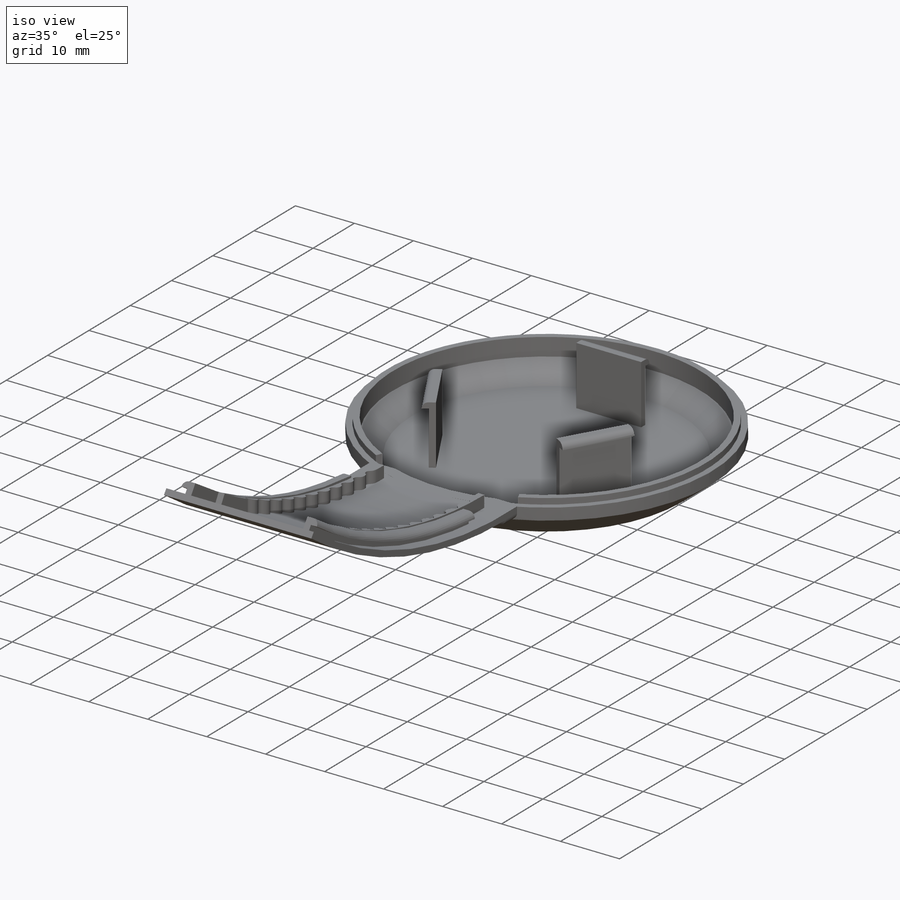
[diagram: iso view]
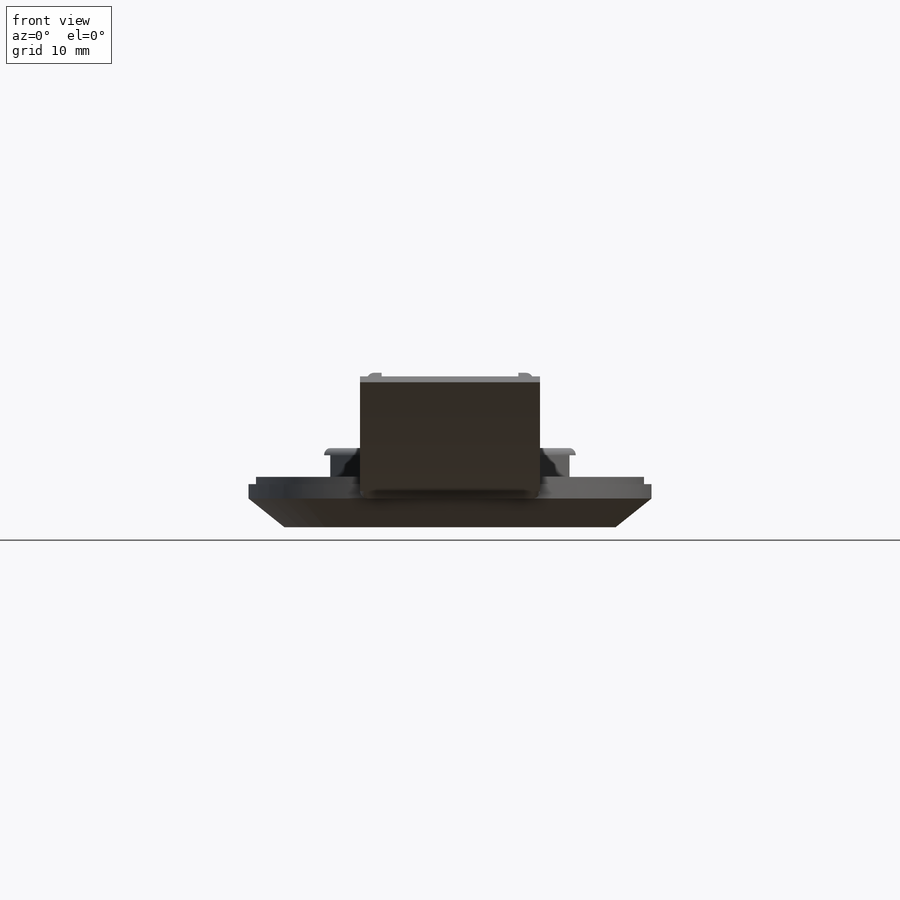
[diagram: front view]
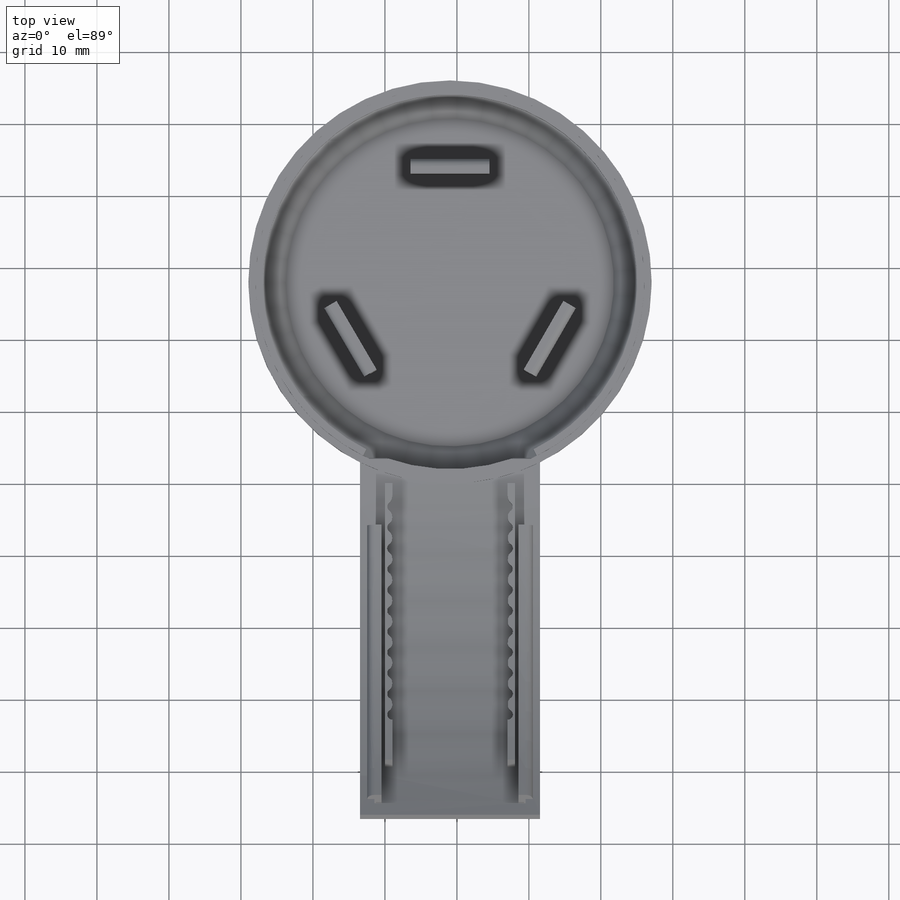
[diagram: top view]
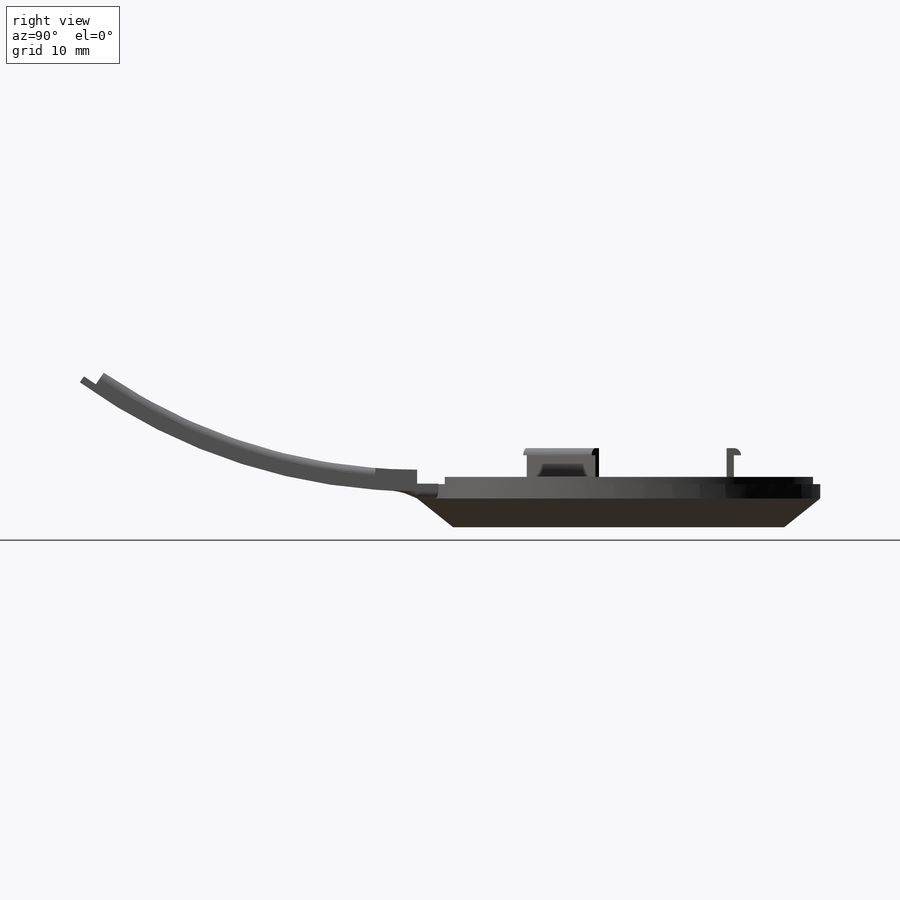
[diagram: right view]
SOLIDWORKS PART (.sldprt)
format: sldprt  version: not decoded by parser v0  size: 1,201,152 bytes
history: native  units: mm
features: sketch x17, cut_extrude x6, plane x4, revolve x4, extrude x3, cut_revolve x2, material x1, fillet x1 (+9 scaffold rows collapsed)
feature tree (47):
  scaffold x9  (default folders/planes/origin — collapsed)
  material  "Material <sin especificar>"
  plane  "Alzado"
  plane  "Planta"
  plane  "Vista lateral"
  sketch  "Croquis1"  dims[c1.D1=25.0mm c1.D2=3.0mm c1.D3=1.0mm c1.D4=2.0mm c1.D5=2.0mm c1.D6=1.0mm c1.D7=1.0mm c1.D8=1.0mm c1.D9=1.0mm c1.D10=1.0mm c1.D11=0.5mm c1.D12=0.5mm c1.D13=1.0mm c1.D14=1.0mm c1.D15=90.0mm c2.D2=8.0mm c2.D3=8.0mm c2.D4=8.0mm c2.D5=79.0mm]
  revolve  "Revolución2"  Angle=30.080284deg
  sketch  "Croquis6"  dims[c1.D1=1.0mm c1.D2=1.0mm c1.D3=32.0mm c1.D4=32.0mm c1.D5=1.45mm c1.D6=1.45mm c1.D7=1.45mm c1.D8=1.45mm c1.D9=1.45mm c1.D10=1.45mm c1.D11=1.45mm c1.D12=1.45mm c1.D13=1.45mm c1.D14=1.45mm c1.D15=1.45mm c1.D16=1.45mm c1.D17=1.45mm c1.D18=1.45mm c1.D19=1.45mm c1.D20=1.45mm c1.D21=1.45mm c1.D22=1.45mm c1.D23=1.45mm c1.D24=1.45mm c1.D25=~1.425162mm c1.D26=1.45mm c1.D27=0.75mm c2.D4=8.0mm]
  cut_extrude  "Cortar-Extruir2"  Depth=24mm
  sketch  "Croquis7"  dims[D1=3.5mm D2=25.0mm D3=~3.496102mm D4=1.0mm D5=2.0mm D6=1.0mm D7=3.0mm D8=1.0mm D9=2.0mm D10=2.0mm D11=2.0mm D12=1.0mm D13=1.0mm D14=2.0mm D15=80.1mm]
  revolve  "Revolución8"  Angle=35.81deg
  sketch  "Croquis8"  dims[D1=80.1mm]
  cut_revolve  "Cortar-Revolución1"  Angle=4.297183deg
  sketch  "Croquis9"  dims[D1=80.1mm]
  cut_revolve  "Cortar-Revolución2"  Angle=1.432394deg
  sketch  "Croquis13"  dims[D1=56.0mm]
  sketch  "Croquis15"  dims[D1=~10.957067mm]
  plane  "Plano2"
  sketch  "Croquis16"  dims[c1.D1=28.0mm c1.D2=6.0mm c1.D3=23.0mm c1.D4=2.0mm c1.D5=1.0mm c1.D6=~6.628613mm c2.D6=~178.457183deg c3.D6=~6.628613mm c4.D6=~178.457183deg c5.D6=1.0mm c5.D7=1.0mm c6.D6=1.5mm c6.D8=1.75mm c6.D9=~1.030776mm]
  revolve  "Revolución9"  Angle=360deg
  sketch  "Croquis17"  dims[D1=80.1mm]
  revolve  "Revolución11"  Angle=2.5deg
  sketch  "Croquis18"  dims[D1=~3.410208mm]
  extrude  "Saliente-Extruir1"  Depth=25mm
  sketch  "Croquis19"
  cut_extrude  "Cortar-Extruir3"  Depth=28mm
  sketch  "Croquis23"  dims[D1=27.0mm]
  cut_extrude  "Cortar-Extruir4"  Depth=2mm
  sketch  "Croquis25"  dims[c1.D1=~7.679765mm c1.D2=30.0mm c2.D1=~9.898923mm c3.D1=120.0deg c3.D3=7.5mm c4.D3=~106.925907deg c5.D3=7.5mm c6.D3=120.0deg c6.D4=5.5mm c6.D5=11.0mm c6.D6=2.0mm c6.D7=2.0mm c6.D8=2.0mm c6.D9=5.5mm c6.D10=11.0mm c6.D11=2.0mm c6.D12=2.0mm c6.D13=5.5mm c6.D14=11.0mm]
  extrude  "Saliente-Extruir2"  Depth=10mm
  sketch  "Croquis26"  dims[c1.D1=~7.876807mm c2.D1=90.0deg c3.D1=9.0mm c3.D2=1.0mm]
  cut_extrude  "Cortar-Extruir8"  Depth=13mm
  sketch  "Croquis27"  dims[D1=9.0mm D2=1.0mm]
  cut_extrude  "Cortar-Extruir9"  Depth=13mm
  sketch  "Croquis28"  dims[D1=9.0mm D2=1.0mm]
  cut_extrude  "Cortar-Extruir10"  Depth=13mm
  fillet  "Redondeo3"  Radius=1mm
  sketch  "Croquis30"  dims[D1=54.0mm D2=52.0mm]
  extrude  "Saliente-Extruir4"  Depth=1mm
decode coverage: 32 of 33 modeling features carry decoded parameters
note: ~ marks probable driven/reference dimensions
note: suppression state not decoded; provenance and decode notes live in map.json
